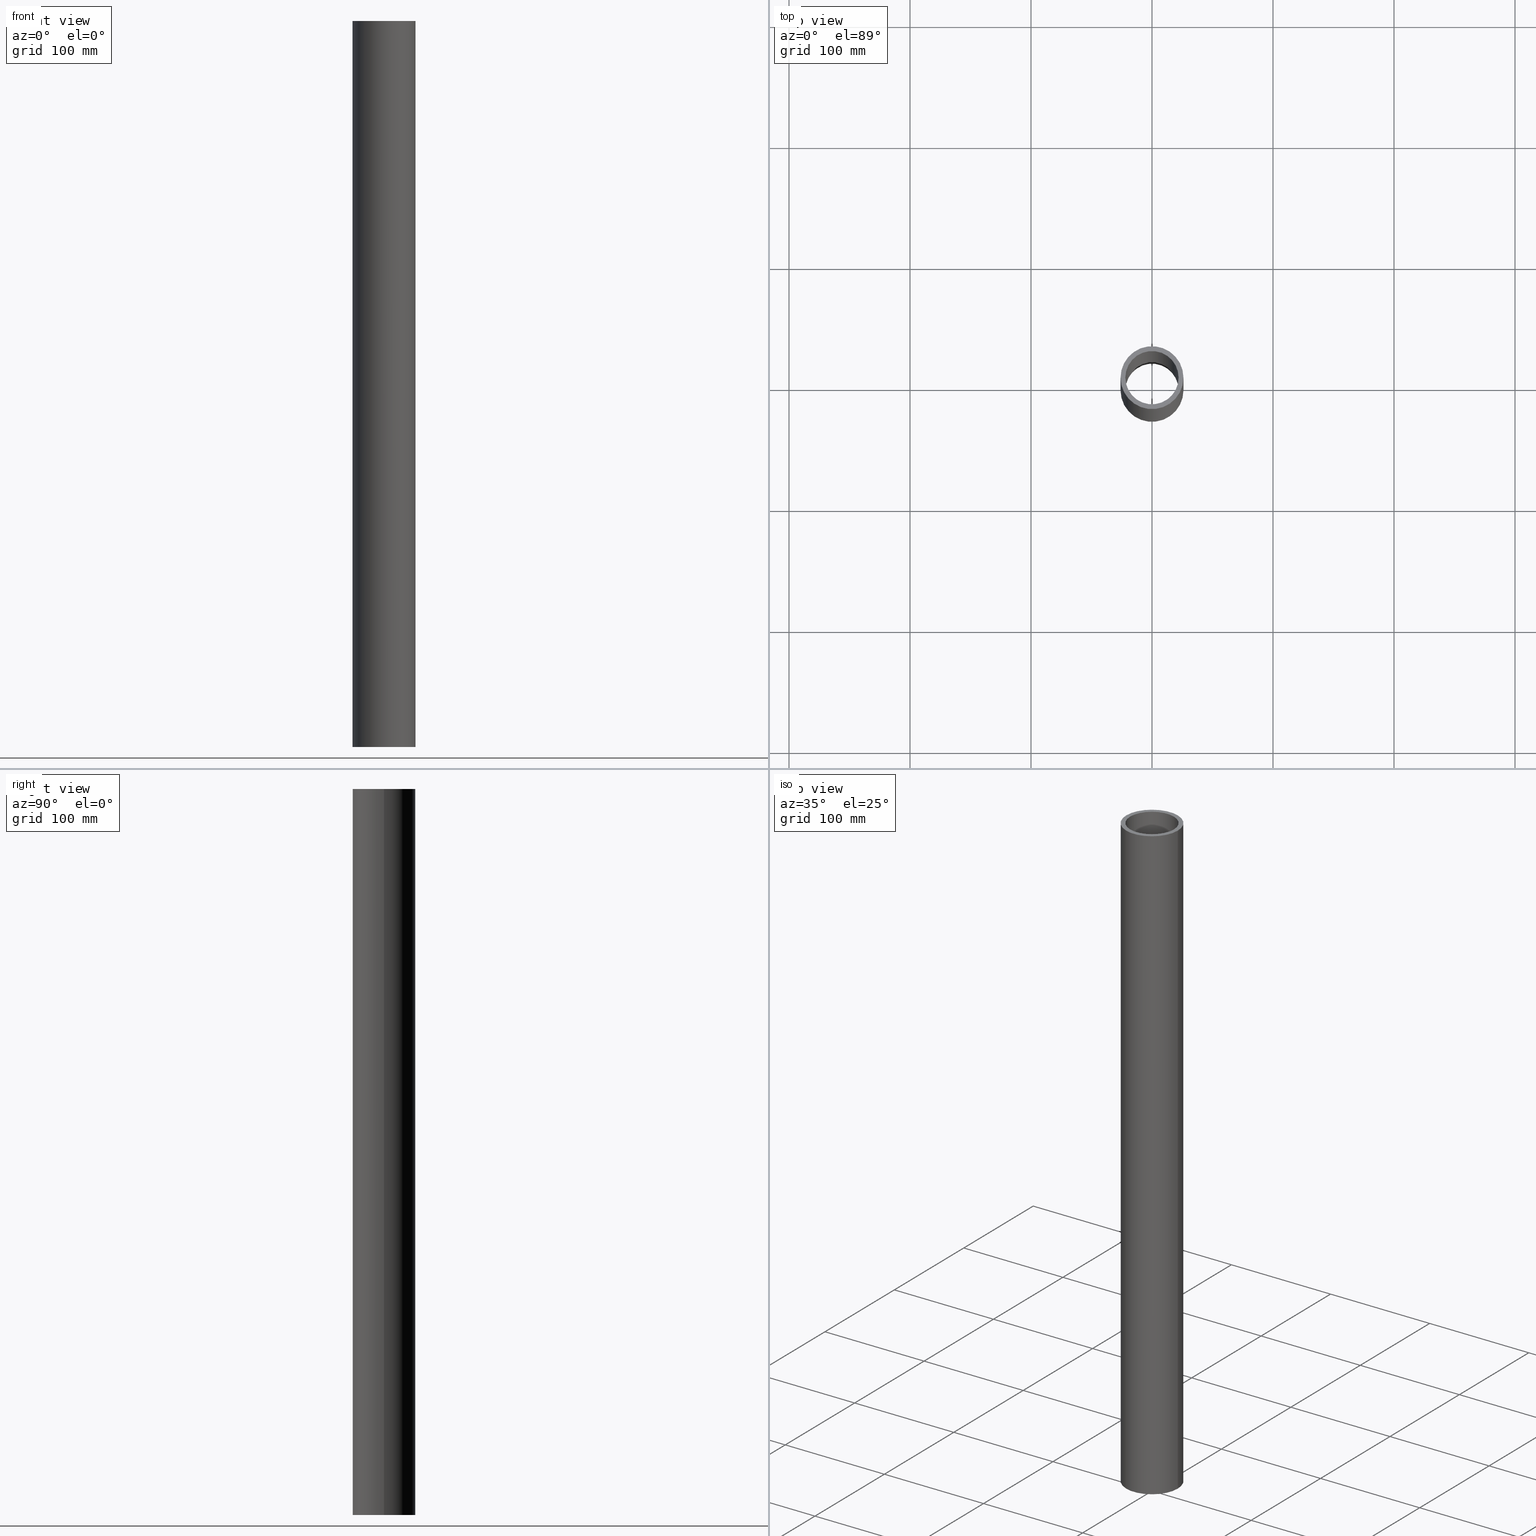
[diagram: canonical four-view strip — front | top / right | iso, engineering-drawing reading convention]
A machine part, canonical four-view strip (front | top / right | iso — engineering-drawing reading convention). The complete STEP part file that produces these views, byte-faithful:
ISO-10303-21;
HEADER;
/* Generated by software containing ST-Developer
 * from STEP Tools, Inc. (www.steptools.com) 
 */

FILE_DESCRIPTION(
/* description */ (''),
/* implementation_level */ '2;1');

FILE_NAME(
/* name */ 
'C:\\Roxtec CAD-files\\Inventor\\TCAI\\100-167907\\100-167907-017_ipt.
STP',
/* time_stamp */ '2020-04-29T07:24:53+02:00',
/* author */ ('a501336'),
/* organization */ (''),
/* preprocessor_version */ 'ST-DEVELOPER v17',
/* originating_system */ 'Autodesk Inventor 2019',
/* authorisation */ '');

FILE_SCHEMA (('AUTOMOTIVE_DESIGN { 1 0 10303 214 3 1 1 }'));
ENDSEC;

DATA;
#10=MECHANICAL_DESIGN_GEOMETRIC_PRESENTATION_REPRESENTATION('',(#60,#61,
#62,#63,#64),#135);
#11=SHAPE_REPRESENTATION_RELATIONSHIP('SRR','None',#142,#12);
#12=ADVANCED_BREP_SHAPE_REPRESENTATION('',(#13),#134);
#13=MANIFOLD_SOLID_BREP('Solid1',#69);
#14=FACE_BOUND('',#24,.T.);
#15=FACE_BOUND('',#27,.T.);
#16=PLANE('',#92);
#17=PLANE('',#96);
#18=FACE_OUTER_BOUND('',#22,.T.);
#19=FACE_OUTER_BOUND('',#23,.T.);
#20=FACE_OUTER_BOUND('',#25,.T.);
#21=FACE_OUTER_BOUND('',#26,.T.);
#22=EDGE_LOOP('',(#46,#47,#48,#49));
#23=EDGE_LOOP('',(#50));
#24=EDGE_LOOP('',(#51));
#25=EDGE_LOOP('',(#52,#53,#54,#55));
#26=EDGE_LOOP('',(#56));
#27=EDGE_LOOP('',(#57));
#28=LINE('',#122,#30);
#29=LINE('',#130,#31);
#30=VECTOR('',#103,22.);
#31=VECTOR('',#114,26.);
#32=CIRCLE('',#90,22.);
#33=CIRCLE('',#91,22.);
#34=CIRCLE('',#93,26.);
#35=CIRCLE('',#95,26.);
#36=VERTEX_POINT('',#119);
#37=VERTEX_POINT('',#121);
#38=VERTEX_POINT('',#125);
#39=VERTEX_POINT('',#128);
#40=EDGE_CURVE('',#36,#36,#32,.T.);
#41=EDGE_CURVE('',#36,#37,#28,.T.);
#42=EDGE_CURVE('',#37,#37,#33,.T.);
#43=EDGE_CURVE('',#38,#38,#34,.T.);
#44=EDGE_CURVE('',#39,#39,#35,.T.);
#45=EDGE_CURVE('',#39,#38,#29,.T.);
#46=ORIENTED_EDGE('',*,*,#40,.F.);
#47=ORIENTED_EDGE('',*,*,#41,.T.);
#48=ORIENTED_EDGE('',*,*,#42,.F.);
#49=ORIENTED_EDGE('',*,*,#41,.F.);
#50=ORIENTED_EDGE('',*,*,#43,.T.);
#51=ORIENTED_EDGE('',*,*,#40,.T.);
#52=ORIENTED_EDGE('',*,*,#44,.F.);
#53=ORIENTED_EDGE('',*,*,#45,.T.);
#54=ORIENTED_EDGE('',*,*,#43,.F.);
#55=ORIENTED_EDGE('',*,*,#45,.F.);
#56=ORIENTED_EDGE('',*,*,#44,.T.);
#57=ORIENTED_EDGE('',*,*,#42,.T.);
#58=CYLINDRICAL_SURFACE('',#89,22.);
#59=CYLINDRICAL_SURFACE('',#94,26.);
#60=STYLED_ITEM('',(#151),#65);
#61=STYLED_ITEM('',(#151),#66);
#62=STYLED_ITEM('',(#151),#67);
#63=STYLED_ITEM('',(#151),#68);
#64=STYLED_ITEM('',(#151),#13);
#65=ADVANCED_FACE('',(#18),#58,.F.);
#66=ADVANCED_FACE('',(#19,#14),#16,.F.);
#67=ADVANCED_FACE('',(#20),#59,.T.);
#68=ADVANCED_FACE('',(#21,#15),#17,.T.);
#69=CLOSED_SHELL('',(#65,#66,#67,#68));
#70=DERIVED_UNIT_ELEMENT(#72,1.);
#71=DERIVED_UNIT_ELEMENT(#137,3.);
#72=(
MASS_UNIT()
NAMED_UNIT(*)
SI_UNIT($,.GRAM.)
);
#73=DERIVED_UNIT((#70,#71));
#74=MEASURE_REPRESENTATION_ITEM('density measure',
POSITIVE_RATIO_MEASURE(8.08),#73);
#75=PROPERTY_DEFINITION_REPRESENTATION(#80,#77);
#76=PROPERTY_DEFINITION_REPRESENTATION(#81,#78);
#77=REPRESENTATION('material name',(#79),#134);
#78=REPRESENTATION('density',(#74),#134);
#79=DESCRIPTIVE_REPRESENTATION_ITEM('Stainless Steel','Stainless Steel');
#80=PROPERTY_DEFINITION('material property','material name',#144);
#81=PROPERTY_DEFINITION('material property','density of part',#144);
#82=DATE_TIME_ROLE('creation_date');
#83=APPLIED_DATE_AND_TIME_ASSIGNMENT(#84,#82,(#144));
#84=DATE_AND_TIME(#85,#86);
#85=CALENDAR_DATE(2014,8,10);
#86=LOCAL_TIME(14,37,11.,#87);
#87=COORDINATED_UNIVERSAL_TIME_OFFSET(0,0,.BEHIND.);
#88=AXIS2_PLACEMENT_3D('placement',#117,#97,#98);
#89=AXIS2_PLACEMENT_3D('',#118,#99,#100);
#90=AXIS2_PLACEMENT_3D('',#120,#101,#102);
#91=AXIS2_PLACEMENT_3D('',#123,#104,#105);
#92=AXIS2_PLACEMENT_3D('',#124,#106,#107);
#93=AXIS2_PLACEMENT_3D('',#126,#108,#109);
#94=AXIS2_PLACEMENT_3D('',#127,#110,#111);
#95=AXIS2_PLACEMENT_3D('',#129,#112,#113);
#96=AXIS2_PLACEMENT_3D('',#131,#115,#116);
#97=DIRECTION('axis',(0.,0.,1.));
#98=DIRECTION('refdir',(1.,0.,0.));
#99=DIRECTION('center_axis',(0.,0.,1.));
#100=DIRECTION('ref_axis',(-1.,0.,0.));
#101=DIRECTION('center_axis',(0.,0.,1.));
#102=DIRECTION('ref_axis',(-1.,0.,0.));
#103=DIRECTION('',(0.,0.,1.));
#104=DIRECTION('center_axis',(0.,0.,-1.));
#105=DIRECTION('ref_axis',(-1.,0.,0.));
#106=DIRECTION('center_axis',(0.,0.,1.));
#107=DIRECTION('ref_axis',(1.,0.,0.));
#108=DIRECTION('center_axis',(0.,0.,-1.));
#109=DIRECTION('ref_axis',(-1.,0.,0.));
#110=DIRECTION('center_axis',(0.,0.,1.));
#111=DIRECTION('ref_axis',(-1.,0.,0.));
#112=DIRECTION('center_axis',(0.,0.,1.));
#113=DIRECTION('ref_axis',(-1.,0.,0.));
#114=DIRECTION('',(0.,0.,-1.));
#115=DIRECTION('center_axis',(0.,0.,1.));
#116=DIRECTION('ref_axis',(1.,0.,0.));
#117=CARTESIAN_POINT('',(0.,0.,0.));
#118=CARTESIAN_POINT('Origin',(0.,0.,0.));
#119=CARTESIAN_POINT('',(22.,2.69422295812418E-15,-300.));
#120=CARTESIAN_POINT('Origin',(0.,0.,-300.));
#121=CARTESIAN_POINT('',(22.,2.69422295812418E-15,300.));
#122=CARTESIAN_POINT('',(22.,2.69422295812418E-15,0.));
#123=CARTESIAN_POINT('Origin',(0.,0.,300.));
#124=CARTESIAN_POINT('Origin',(-2.6534013981526E-16,0.,-300.));
#125=CARTESIAN_POINT('',(26.,3.18408167778312E-15,-300.));
#126=CARTESIAN_POINT('Origin',(0.,0.,-300.));
#127=CARTESIAN_POINT('Origin',(0.,0.,0.));
#128=CARTESIAN_POINT('',(26.,3.18408167778312E-15,300.));
#129=CARTESIAN_POINT('Origin',(0.,0.,300.));
#130=CARTESIAN_POINT('',(26.,3.18408167778312E-15,0.));
#131=CARTESIAN_POINT('Origin',(-2.6534013981526E-16,0.,300.));
#132=UNCERTAINTY_MEASURE_WITH_UNIT(LENGTH_MEASURE(0.01),#136,
'DISTANCE_ACCURACY_VALUE',
'Maximum model space distance between geometric entities at asserted c
onnectivities');
#133=UNCERTAINTY_MEASURE_WITH_UNIT(LENGTH_MEASURE(0.01),#136,
'DISTANCE_ACCURACY_VALUE',
'Maximum model space distance between geometric entities at asserted c
onnectivities');
#134=(
GEOMETRIC_REPRESENTATION_CONTEXT(3)
GLOBAL_UNCERTAINTY_ASSIGNED_CONTEXT((#132))
GLOBAL_UNIT_ASSIGNED_CONTEXT((#136,#139,#138))
REPRESENTATION_CONTEXT('','3D')
);
#135=(
GEOMETRIC_REPRESENTATION_CONTEXT(3)
GLOBAL_UNCERTAINTY_ASSIGNED_CONTEXT((#133))
GLOBAL_UNIT_ASSIGNED_CONTEXT((#136,#139,#138))
REPRESENTATION_CONTEXT('','3D')
);
#136=(
LENGTH_UNIT()
NAMED_UNIT(*)
SI_UNIT(.MILLI.,.METRE.)
);
#137=(
LENGTH_UNIT()
NAMED_UNIT(*)
SI_UNIT(.CENTI.,.METRE.)
);
#138=(
NAMED_UNIT(*)
SI_UNIT($,.STERADIAN.)
SOLID_ANGLE_UNIT()
);
#139=(
NAMED_UNIT(*)
PLANE_ANGLE_UNIT()
SI_UNIT($,.RADIAN.)
);
#140=SHAPE_DEFINITION_REPRESENTATION(#141,#142);
#141=PRODUCT_DEFINITION_SHAPE('',$,#144);
#142=SHAPE_REPRESENTATION('',(#88),#134);
#143=PRODUCT_DEFINITION_CONTEXT('part definition',#148,'design');
#144=PRODUCT_DEFINITION('100-167907-017','100-167907-017',#145,#143);
#145=PRODUCT_DEFINITION_FORMATION('A',$,#150);
#146=PRODUCT_RELATED_PRODUCT_CATEGORY('100-167907-017','100-167907-017',
(#150));
#147=APPLICATION_PROTOCOL_DEFINITION('international standard',
'automotive_design',2009,#148);
#148=APPLICATION_CONTEXT(
'Core Data for Automotive Mechanical Design Process');
#149=PRODUCT_CONTEXT('part definition',#148,'mechanical');
#150=PRODUCT('100-167907-017','100-167907-017',$,(#149));
#151=PRESENTATION_STYLE_ASSIGNMENT((#152));
#152=SURFACE_STYLE_USAGE(.BOTH.,#153);
#153=SURFACE_SIDE_STYLE('',(#154));
#154=SURFACE_STYLE_FILL_AREA(#155);
#155=FILL_AREA_STYLE('',(#156));
#156=FILL_AREA_STYLE_COLOUR('',#157);
#157=COLOUR_RGB('',0.745098039215686,0.737254901960784,0.729411764705882);
ENDSEC;
END-ISO-10303-21;
